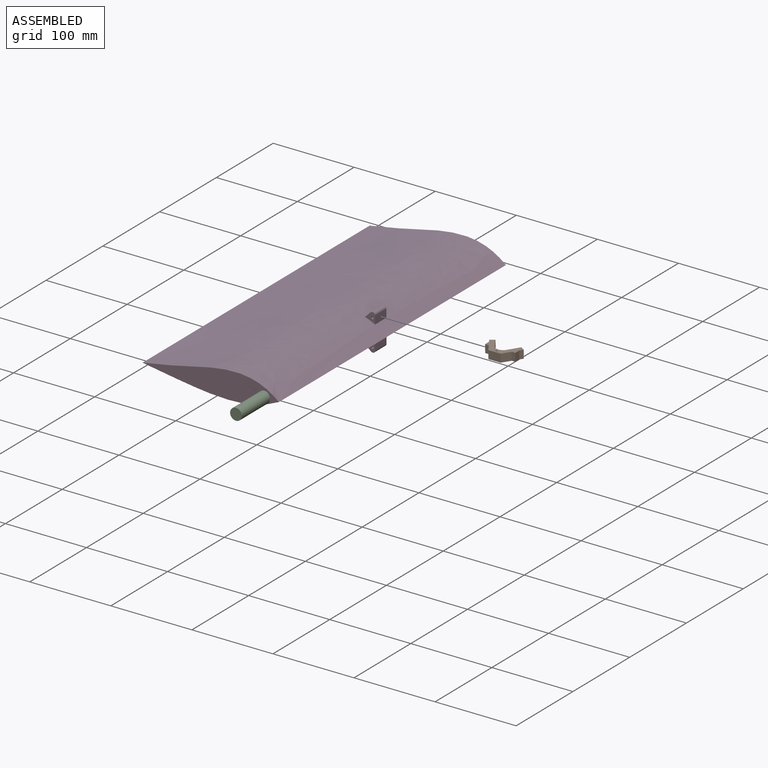
[diagram: assembled view]
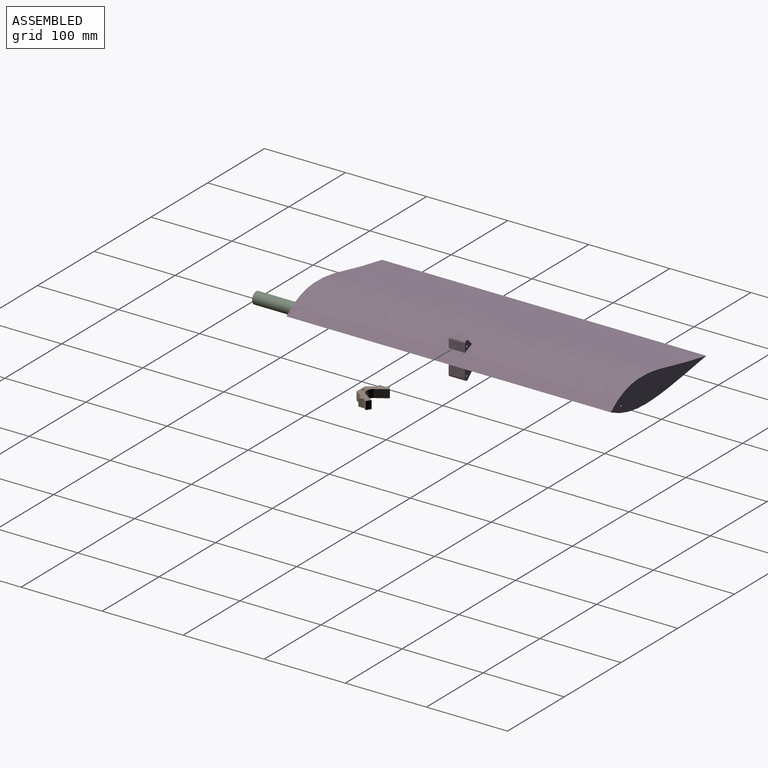
[diagram: assembled view, second angle]
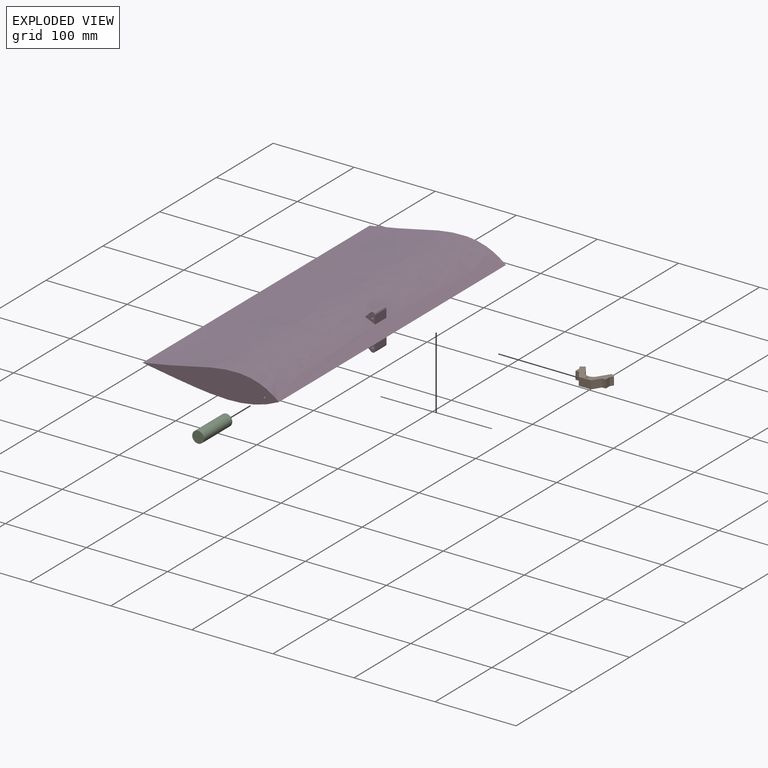
[diagram: exploded view]
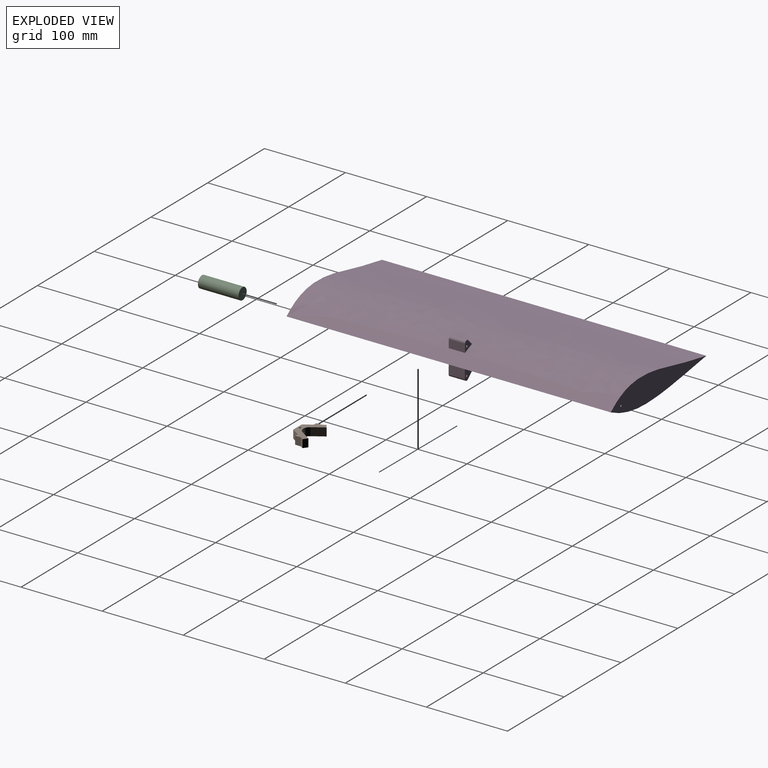
[diagram: exploded view, second angle]
ASSEMBLY  parts=4 mates=3
PART A: 3 faces, bbox 136.8x1x1 mm
  f0: plane 1.02x1mm, normal (-1,0,0), area 0.8mm2, adj f2
  f1: plane 1.02x1mm, normal (1,0,0), area 0.8mm2, adj f2
  f2: cylinder r=0.5mm len=136.83mm, axis (1,0,0), area 429.9mm2, adj f0,f1
PART B: 19 faces, bbox 24.6x10x42.5 mm
  f0: cylinder r=8.44mm len=14.14mm, axis (0,1,0), area 167.6mm2, adj f1,f15,f16,f17
  f1: plane 13.42x10mm, normal (0.55,0,0.84), area 160.2mm2, adj f0,f2,f15,f17
  f2: plane 10x0.34mm, normal (0.56,0,0.83), area 4.1mm2, adj f1,f3,f15,f17
  f3: plane 10x5.22mm, normal (0.83,0,-0.56), area 63.2mm2, adj f2,f4,f15,f17
  f4: plane 10x4.03mm, normal (-0.55,0,-0.84), area 48.1mm2, adj f3,f5,f15,f17
  f5: plane 10x6.87mm, normal (0,0,-1), area 68.7mm2, adj f4,f6,f15,f17
  f6: plane 10x4.48mm, normal (-1,0,0), area 44.8mm2, adj f5,f7,f15,f17
  f7: plane 10.14x10mm, normal (-0.55,0,-0.84), area 121mm2, adj f6,f8,f15,f17
  f8: plane 15.12x10mm, normal (-1,0,0), area 151.2mm2, adj f7,f9,f15,f17
  f9: plane 10.14x10mm, normal (-0.55,0,0.84), area 121mm2, adj f8,f10,f15,f17
  f10: plane 10x4.48mm, normal (-1,0,0), area 44.8mm2, adj f9,f11,f15,f17
  f11: plane 10x6.87mm, normal (0,0,1), area 68.7mm2, adj f10,f12,f15,f17
  f12: plane 10x4.03mm, normal (-0.55,0,0.84), area 48.1mm2, adj f11,f14,f15,f17
  f13: cylinder r=1.19mm len=10mm, axis (0,1,0), area 74.7mm2, adj f15,f17
  f14: plane 10x5.22mm, normal (0.83,0,0.56), area 63.2mm2, adj f12,f15,f17,f18
  f15: plane 42.55x24.6mm, normal (0,-1,0), area 409.8mm2, adj f0,f1,f2,f3,f4,f5,f6,f7
  f16: plane 13.42x10mm, normal (0.55,0,-0.84), area 160.2mm2, adj f0,f15,f17,f18
  f17: plane 42.55x24.6mm, normal (0,1,0), area 409.8mm2, adj f0,f1,f2,f3,f4,f5,f6,f7
  f18: plane 10x0.34mm, normal (0.56,0,-0.83), area 4.1mm2, adj f14,f15,f16,f17
PART C: 3 faces, bbox 50x14.4x14.7 mm
  f0: plane 14.71x14.44mm, normal (-1,0,0), area 163.8mm2, adj f2
  f1: plane 14.71x14.44mm, normal (1,0,0), area 163.8mm2, adj f2
  f2: cylinder r=7.22mm len=50mm, axis (1,0,0), area 2268.8mm2, adj f0,f1
PART D: 17 faces, bbox 168.3x400x45.3 mm
  f0: cylinder r=1.33mm len=20mm, axis (0,1,0), area 166.7mm2, adj f4,f6
  f1: cylinder r=3.15mm len=20mm, axis (0,1,0), area 147.7mm2, adj f4,f5,f6,f7
  f2: cylinder r=1.33mm len=20mm, axis (0,-1,0), area 166.7mm2, adj f8,f10
  f3: cylinder r=3.15mm len=20mm, axis (0,1,0), area 145.2mm2, adj f8,f9,f10,f11
  f4: plane 13.19x12.37mm, normal (0,1,0), area 87.5mm2, adj f0,f1,f5,f7,f12
  f5: plane 20x6.98mm, normal (-0.7,0,0.71), area 195.7mm2, adj f1,f4,f6,f12
  f6: plane 13.19x12.37mm, normal (0,-1,0), area 87.5mm2, adj f0,f1,f5,f7,f12
  f7: plane 20x9.97mm, normal (1,0,0), area 199.5mm2, adj f1,f4,f6,f12
  f8: plane 16.67x15.85mm, normal (0,1,0), area 144.5mm2, adj f2,f3,f9,f11,f13
  f9: plane 20x12.65mm, normal (1,0,0), area 253mm2, adj f3,f8,f10,f13
  f10: plane 16.67x15.85mm, normal (0,-1,0), area 144.5mm2, adj f2,f3,f9,f11,f13
  f11: plane 20x11.39mm, normal (-0.67,0,-0.74), area 307.5mm2, adj f3,f8,f10,f13
  f12: extruded ~400x168.22mm, area 69654.7mm2, adj f4,f5,f6,f7,f13,f14,f15
  f13: extruded ~400x168.22mm, area 68193.9mm2, adj f8,f9,f10,f11,f12,f14,f15
  f14: plane 168.22x34.41mm, normal (0,1,0), area 3410mm2, adj f12,f13,f16
  f15: plane 168.22x34.41mm, normal (0,-1,0), area 3410mm2, adj f12,f13,f16
  f16: cylinder r=1.3mm len=400mm, axis (0,1,0), area 3260.4mm2, adj f14,f15
PLACE A rot(axis=(0,-1,0),0.4deg) t=(-34.25,-49.33,30.38)mm
PLACE B rot(axis=(-0.58,-0.58,0.57),120.2deg) t=(97.3,-163.57,47.31)mm
PLACE C rot(axis=(-0.58,0.58,-0.58),119.7deg) t=(-59.74,-274.33,401.09)mm fixed
PLACE D rot(axis=(0,-1,0),0.4deg) t=(-38.13,-49.33,31.4)mm
MATE slider A.f2 <-> B.f11  axis (1,0,0.01) through (84.17,-49.33,47.23)mm
MATE fastened D.f7 <-> A.f2  axis (1,0,0.01) through (-52.66,-49.33,46.36)mm
MATE revolute C.f2 <-> D.f16  axis (0,-1,0) through (-56.12,-249.33,32.08)mm
